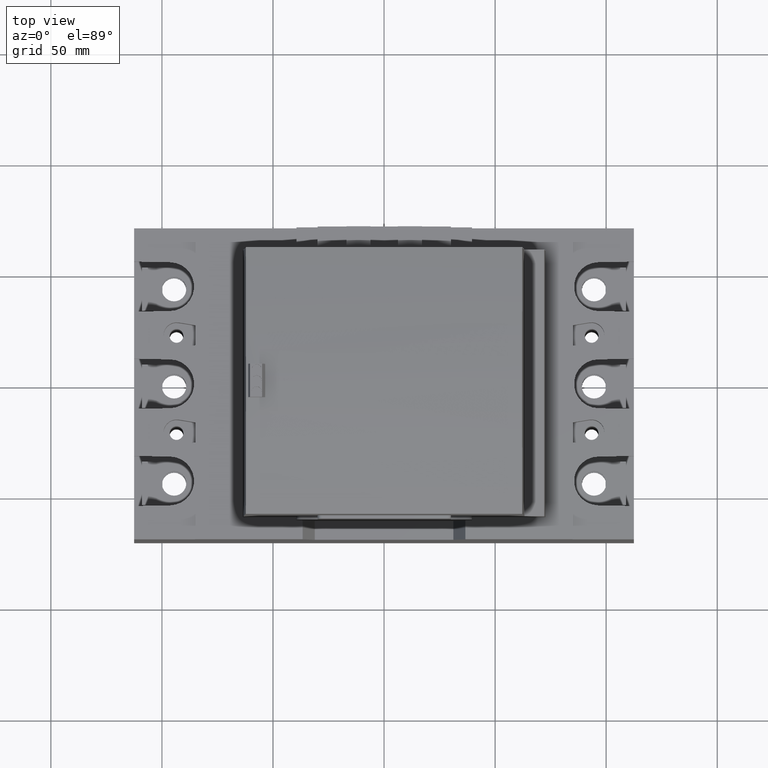
[diagram: clean part render]
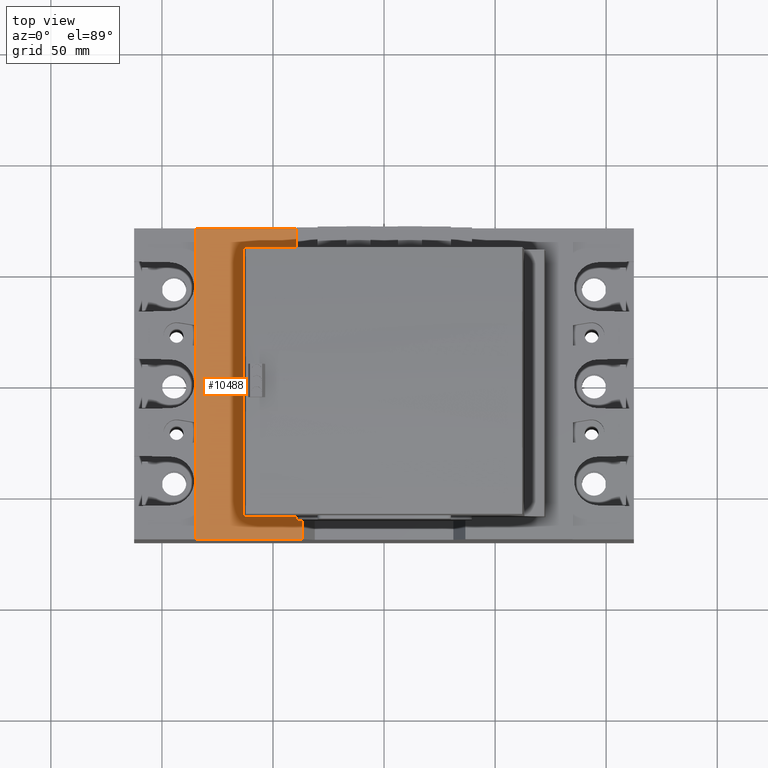
[diagram: same view with one face highlighted and labeled with its STEP entity id]
A machine part, top view. The second image highlights one B-rep face of the part: STEP entity #10488.
In plain terms, the highlighted planar face has unit normal (0, 0, 1).
Its self-contained STEP definition (entity closure, byte-faithful):
#247=DIRECTION('',(1.E0,0.E0,0.E0));
#248=VECTOR('',#247,2.690987114407E1);
#249=CARTESIAN_POINT('',(-6.354774552584E1,-6.E1,1.029849074712E2));
#250=LINE('',#249,#248);
#352=DIRECTION('',(1.E0,0.E0,0.E0));
#353=VECTOR('',#352,4.836212561823E1);
#354=CARTESIAN_POINT('',(-8.5E1,7.E1,1.029849074712E2));
#355=LINE('',#354,#353);
#359=DIRECTION('',(0.E0,-1.E0,0.E0));
#360=VECTOR('',#359,1.E1);
#361=CARTESIAN_POINT('',(-3.663787438177E1,7.E1,1.029849074712E2));
#362=LINE('',#361,#360);
#366=DIRECTION('',(0.E0,-1.E0,0.E0));
#367=VECTOR('',#366,1.2E2);
#368=CARTESIAN_POINT('',(-6.354774552584E1,6.E1,1.029849074712E2));
#369=LINE('',#368,#367);
#373=DIRECTION('',(-1.E0,0.E0,0.E0));
#374=VECTOR('',#373,4.836212561823E1);
#375=CARTESIAN_POINT('',(-3.663787438177E1,-7.E1,1.029849074712E2));
#376=LINE('',#375,#374);
#408=DIRECTION('',(-1.E0,0.E0,0.E0));
#409=VECTOR('',#408,2.690987114407E1);
#410=CARTESIAN_POINT('',(-3.663787438177E1,6.E1,1.029849074712E2));
#411=LINE('',#410,#409);
#1172=DIRECTION('',(0.E0,1.E0,0.E0));
#1173=VECTOR('',#1172,1.E1);
#1174=CARTESIAN_POINT('',(-3.663787438177E1,-7.E1,1.029849074712E2));
#1175=LINE('',#1174,#1173);
#3046=DIRECTION('',(0.E0,-1.E0,0.E0));
#3047=VECTOR('',#3046,1.4E2);
#3048=CARTESIAN_POINT('',(-8.5E1,7.E1,1.029849074712E2));
#3049=LINE('',#3048,#3047);
#8876=CARTESIAN_POINT('',(-8.5E1,7.E1,1.029849074712E2));
#8878=VERTEX_POINT('',#8876);
#8924=CARTESIAN_POINT('',(-8.5E1,-7.E1,1.029849074712E2));
#8926=VERTEX_POINT('',#8924);
#8930=CARTESIAN_POINT('',(-3.663787438177E1,-6.E1,1.029849074712E2));
#8932=VERTEX_POINT('',#8930);
#8938=CARTESIAN_POINT('',(-3.663787438177E1,-7.E1,1.029849074712E2));
#8940=VERTEX_POINT('',#8938);
#8946=CARTESIAN_POINT('',(-6.354774552584E1,-6.E1,1.029849074712E2));
#8947=VERTEX_POINT('',#8946);
#8956=CARTESIAN_POINT('',(-3.663787438177E1,6.E1,1.029849074712E2));
#8957=VERTEX_POINT('',#8956);
#8964=CARTESIAN_POINT('',(-3.663787438177E1,7.E1,1.029849074712E2));
#8965=VERTEX_POINT('',#8964);
#8976=CARTESIAN_POINT('',(-6.354774552584E1,6.E1,1.029849074712E2));
#8977=VERTEX_POINT('',#8976);
#10467=CARTESIAN_POINT('',(-6.354774552584E1,7.E1,1.029849074712E2));
#10468=DIRECTION('',(0.E0,0.E0,1.E0));
#10469=DIRECTION('',(-1.E0,0.E0,0.E0));
#10470=AXIS2_PLACEMENT_3D('',#10467,#10468,#10469);
#10471=PLANE('',#10470);
#10472=ORIENTED_EDGE('',*,*,#10314,.T.);
#10474=ORIENTED_EDGE('',*,*,#10473,.T.);
#10476=ORIENTED_EDGE('',*,*,#10475,.T.);
#10478=ORIENTED_EDGE('',*,*,#10477,.T.);
#10479=ORIENTED_EDGE('',*,*,#10408,.T.);
#10481=ORIENTED_EDGE('',*,*,#10480,.F.);
#10483=ORIENTED_EDGE('',*,*,#10482,.T.);
#10485=ORIENTED_EDGE('',*,*,#10484,.F.);
#10486=EDGE_LOOP('',(#10472,#10474,#10476,#10478,#10479,#10481,#10483,#10485));
#10487=FACE_OUTER_BOUND('',#10486,.F.);
#10314=EDGE_CURVE('',#8878,#8965,#355,.T.);
#10408=EDGE_CURVE('',#8947,#8932,#250,.T.);
#10473=EDGE_CURVE('',#8965,#8957,#362,.T.);
#10475=EDGE_CURVE('',#8957,#8977,#411,.T.);
#10477=EDGE_CURVE('',#8977,#8947,#369,.T.);
#10480=EDGE_CURVE('',#8940,#8932,#1175,.T.);
#10482=EDGE_CURVE('',#8940,#8926,#376,.T.);
#10484=EDGE_CURVE('',#8878,#8926,#3049,.T.);
#10488=ADVANCED_FACE('',(#10487),#10471,.T.);